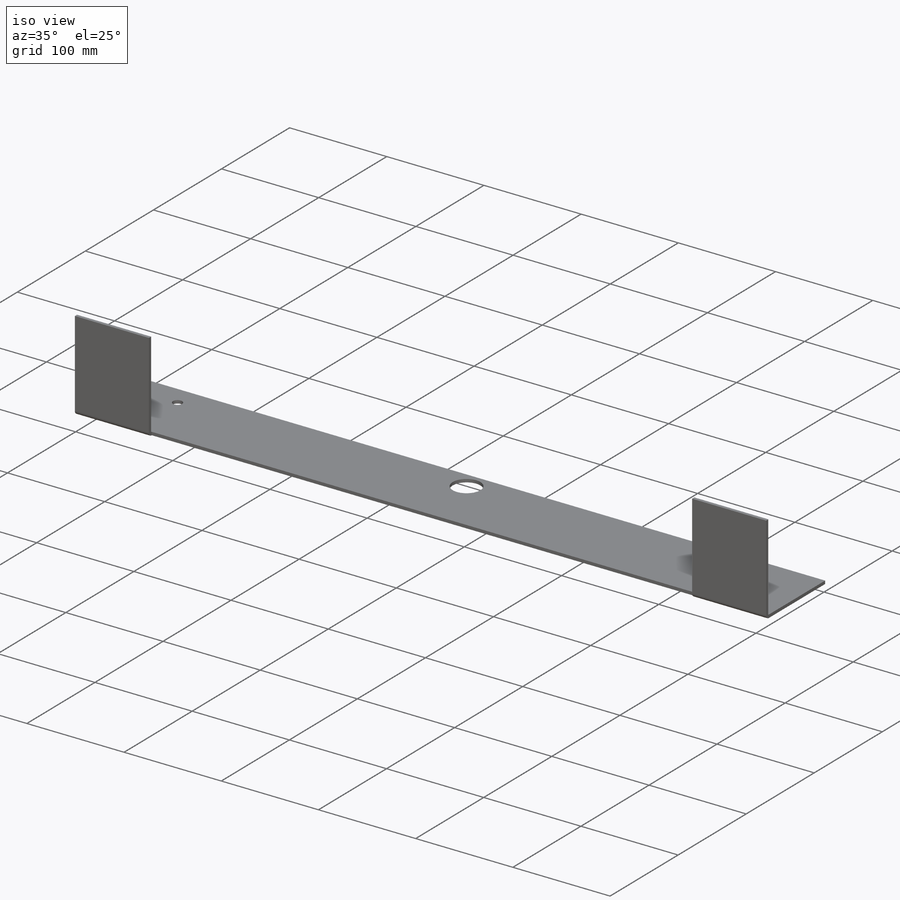
[diagram: iso view]
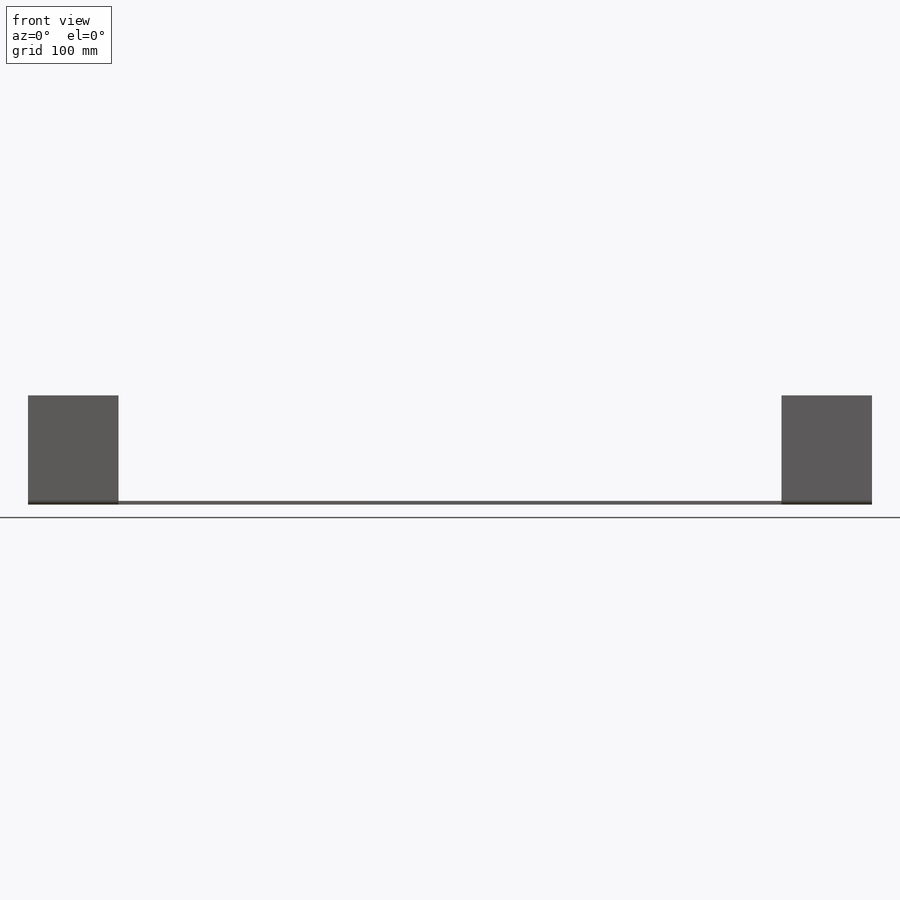
[diagram: front view]
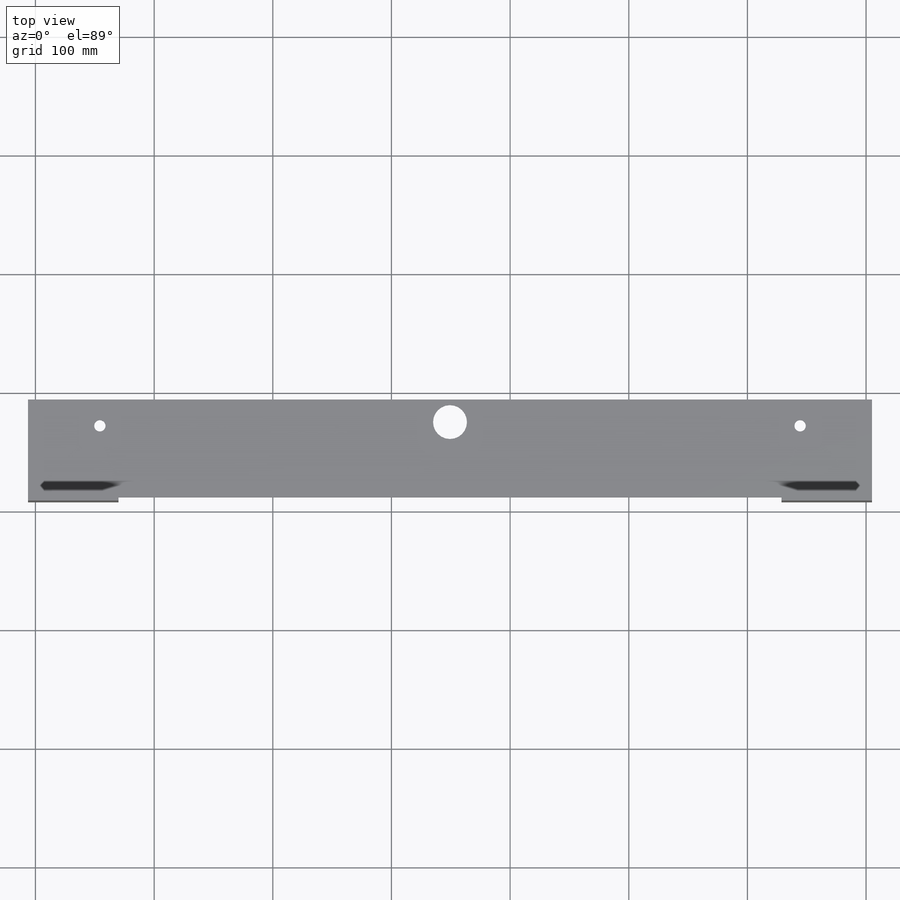
[diagram: top view]
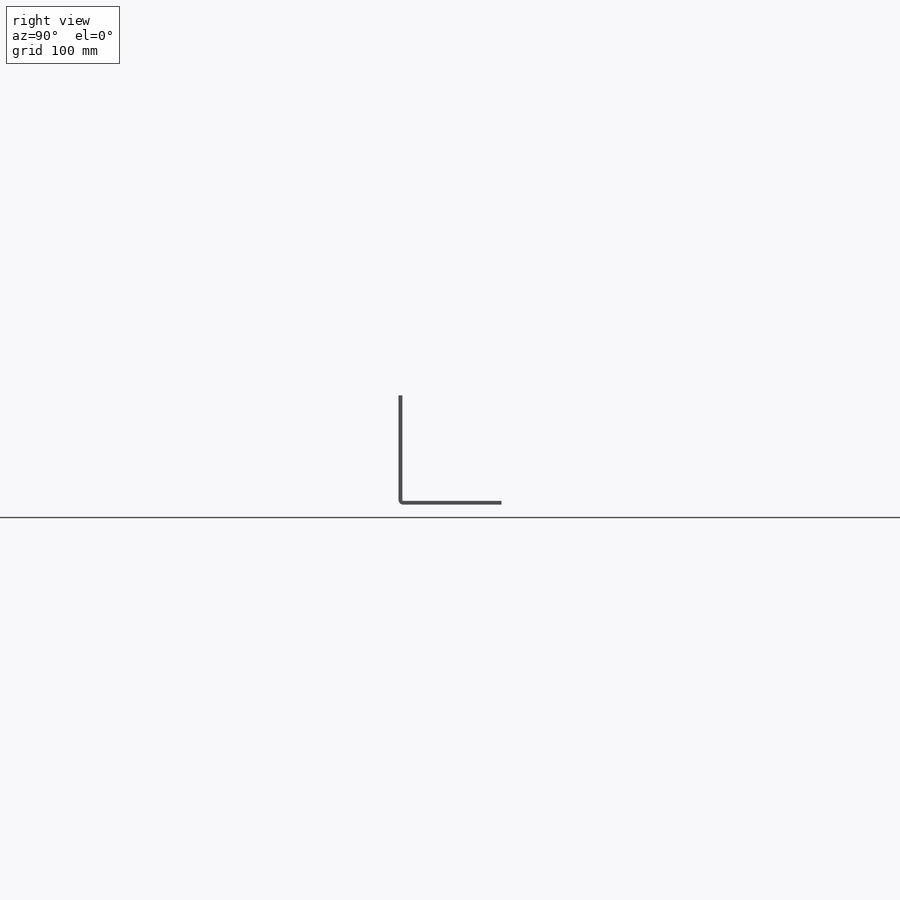
[diagram: right view]
SOLIDWORKS PART (.sldprt)
format: sldprt  version: not decoded by parser v0  size: 358,400 bytes
history: native  units: mm
features: sketch x22, cut_extrude x10, sheet_metal_op x7, material x1 + 5 further entries (+12 scaffold rows collapsed; 1 parser-record rows omitted)
feature tree (58):
  scaffold x12  (default folders/planes/origin — collapsed)
  material  "6061-T6 (SS)"
  sketch  "Sketch18"  dims[c1.D1=711.2mm c2.D1=0.7366mm c2.D2=0.5 c2.D3=0.0mm c2.D6=500.0mm]
  sheet_metal_op  "Base-Flange1"
  sketch  "Sketch23"  dims[D1=76.2mm D2=88.9mm D3=215.9mm]
  cut_extrude  "Cut-Extrude1"  [1 undecoded]
  sketch  "Sketch24"  dims[D1=~60.813222mm D2=139.7mm D3=127.0mm]
  cut_extrude  "Cut-Extrude2"  [1 undecoded]
  sketch  "Sketch25"  dims[D1=215.9mm D2=88.9mm]
  cut_extrude  "Cut-Extrude3"  [1 undecoded]
  sketch  "Sketch32"  dims[D1=558.8mm D2=92.075mm]
  cut_extrude  "Cut-Extrude6"  [1 undecoded]
  sketch  "Sketch33"
  parser-record x1  (decoder bookkeeping rows leaked as tree rows — omitted from the tree; the rows remain in map.json)
  sketch  "Sketch34"
  "SketchBend2"
  sketch  "Sketch35"  dims[D1=9.525mm D2=28.575mm D3=9.525mm]
  cut_extrude  "Cut-Extrude7"  [1 undecoded]
  sketch  "Bend-Lines5"
  sketch  "Bounding-Box5"
  sheet_metal_op  "Sheet-Metal(5)"
  "Flat-Pattern(5)"
  sketch  "Bend-Lines6"
  sketch  "Bounding-Box6"
  cut_extrude  "Sheet-Metal(6)"  Depth=0.7366mm
  sheet_metal_op  "Flat-Pattern(5)"
  sketch  "Bend-Lines6"
  sketch  "Bounding-Box6"
  cut_extrude  "Sheet-Metal(7)"  Depth=0.7366mm
  sheet_metal_op  "Flat-Pattern(5)"
  sketch  "Bend-Lines6"
  sketch  "Bounding-Box6"
  cut_extrude  "Sheet-Metal(8)"  Depth=0.7366mm
  sheet_metal_op  "Flat-Pattern(5)"
  sketch  "Bend-Lines6"
  sketch  "Bounding-Box6"
  cut_extrude  "Sheet-Metal(12)"  Depth=0.7366mm
  sheet_metal_op  "Flat-Pattern(5)"
  sketch  "Bend-Lines6"
  sketch  "Bounding-Box6"
  "Flatten-<SketchBend2>1"
  cut_extrude  "Sheet-Metal(13)"  Depth=0.7366mm
  sheet_metal_op  "Flat-Pattern(5)"
  sketch  "Bend-Lines6"
  sketch  "Bounding-Box6"
  "Flatten-<SketchBend1>1"
  "Flatten-<SketchBend2>1"
decode coverage: 11 of 39 modeling features carry decoded parameters; 5 rows unclassified (native names shown)
note: ~ marks probable driven/reference dimensions
note: 5 parameter values undecoded
summary: no parameter record found for 5 features
note: suppression state not decoded; provenance and decode notes live in map.json
